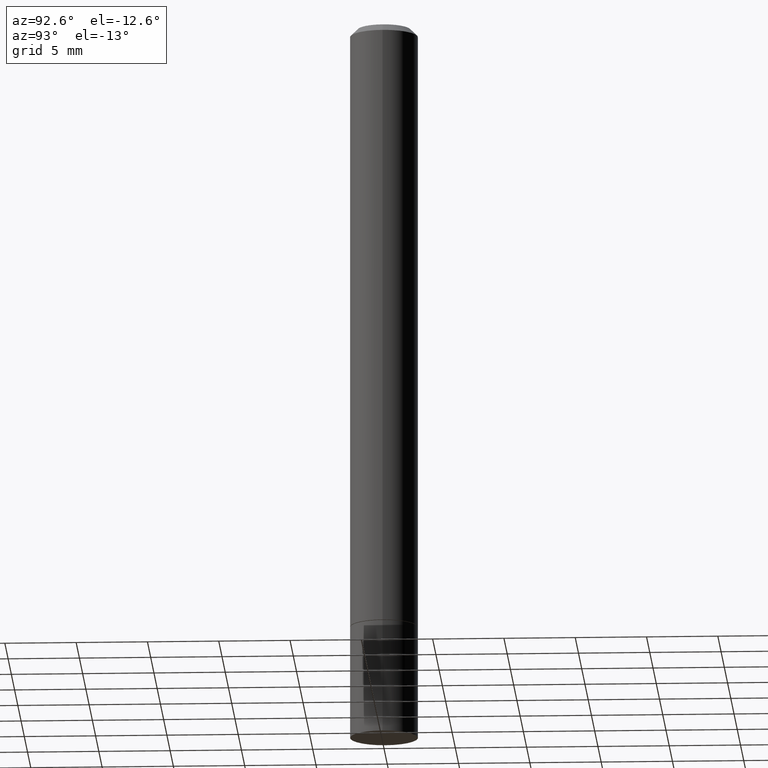
[diagram: clean part render]
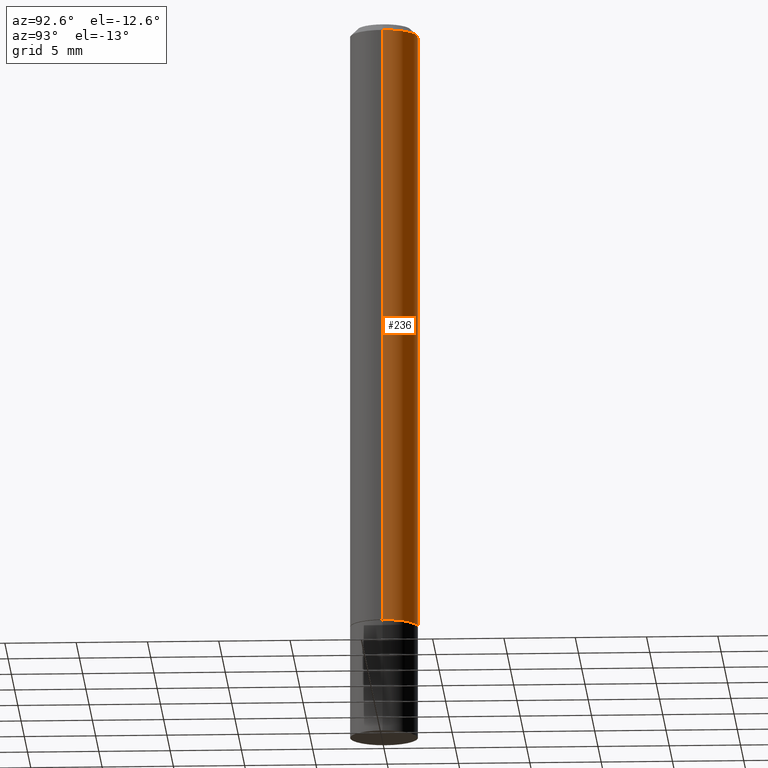
[diagram: same view with one face highlighted and labeled with its STEP entity id]
A machine part, auxiliary view. The second image highlights one B-rep face of the part: STEP entity #236.
In plain terms, the highlighted cylindrical surface (edge-blend (fillet) strip) has radius 2.3812 mm, axis along (-0, 0, 1).
Its self-contained STEP definition (entity closure, byte-faithful):
#2 = CARTESIAN_POINT ( 'NONE',  ( -0.09374999999999988898, 6.661338147750931354E-16, -4.611501647113968390E-30 ) ) ;
#7 = CARTESIAN_POINT ( 'NONE',  ( 0.000000000000000000, 0.000000000000000000, 0.000000000000000000 ) ) ;
#8 = ORIENTED_EDGE ( 'NONE', *, *, #365, .F. ) ;
#21 = AXIS2_PLACEMENT_3D ( 'NONE', #7, #350, #121 ) ;
#40 = EDGE_CURVE ( 'NONE', #307, #108, #92, .T. ) ;
#50 = VERTEX_POINT ( 'NONE', #57 ) ;
#57 = CARTESIAN_POINT ( 'NONE',  ( 0.09375000000000001388, -6.543036028992051756E-15, -1.686499999999999888 ) ) ;
#67 = DIRECTION ( 'NONE',  ( -2.445468806185136597E-29, 3.491481338843145583E-15, 1.000000000000000000 ) ) ;
#69 = EDGE_LOOP ( 'NONE', ( #336, #256, #8, #190 ) ) ;
#70 = CARTESIAN_POINT ( 'NONE',  ( 4.124283141631232404E-29, -5.888383277958965040E-15, -1.686499999999999888 ) ) ;
#84 = EDGE_CURVE ( 'NONE', #50, #126, #285, .T. ) ;
#90 = CIRCLE ( 'NONE', #283, 0.09374999999999979183 ) ;
#92 = LINE ( 'NONE', #2, #111 ) ;
#99 = AXIS2_PLACEMENT_3D ( 'NONE', #70, #123, #267 ) ;
#102 = CYLINDRICAL_SURFACE ( 'NONE', #21, 0.09374999999999988898 ) ;
#108 = VERTEX_POINT ( 'NONE', #143 ) ;
#111 = VECTOR ( 'NONE', #309, 39.37007874015748143 ) ;
#121 = DIRECTION ( 'NONE',  ( 1.000000000000000000, -6.982962677686265133E-15, 4.876176775795935793E-29 ) ) ;
#123 = DIRECTION ( 'NONE',  ( -2.445468806185136597E-29, 3.491481338843145583E-15, 1.000000000000000000 ) ) ;
#126 = VERTEX_POINT ( 'NONE', #168 ) ;
#141 = VECTOR ( 'NONE', #175, 39.37007874015748143 ) ;
#143 = CARTESIAN_POINT ( 'NONE',  ( -0.09374999999999979183, 5.848231242562229240E-16, -0.02000000000000003858 ) ) ;
#163 = CIRCLE ( 'NONE', #99, 0.09375000000000001388 ) ;
#168 = CARTESIAN_POINT ( 'NONE',  ( 0.09374999999999979183, -7.130013140679427058E-16, -0.02000000000000003858 ) ) ;
#175 = DIRECTION ( 'NONE',  ( -2.445468806185136877E-29, 3.491481338843145188E-15, 1.000000000000000000 ) ) ;
#181 = FACE_OUTER_BOUND ( 'NONE', #69, .T. ) ;
#190 = ORIENTED_EDGE ( 'NONE', *, *, #84, .F. ) ;
#231 = CARTESIAN_POINT ( 'NONE',  ( 0.09374999999999988898, -6.546527510330866166E-16, 4.571415727308684201E-30 ) ) ;
#236 = ADVANCED_FACE ( 'NONE', ( #181 ), #102, .T. ) ;
#241 = DIRECTION ( 'NONE',  ( 1.000000000000000000, -6.982962677686266711E-15, 0.000000000000000000 ) ) ;
#256 = ORIENTED_EDGE ( 'NONE', *, *, #40, .T. ) ;
#267 = DIRECTION ( 'NONE',  ( 1.000000000000000000, -6.982962677686261189E-15, 0.000000000000000000 ) ) ;
#268 = EDGE_CURVE ( 'NONE', #50, #307, #163, .T. ) ;
#269 = CARTESIAN_POINT ( 'NONE',  ( -0.09375000000000001388, -2.312972637592815906E-15, -1.686499999999999888 ) ) ;
#283 = AXIS2_PLACEMENT_3D ( 'NONE', #319, #67, #241 ) ;
#285 = LINE ( 'NONE', #231, #141 ) ;
#307 = VERTEX_POINT ( 'NONE', #269 ) ;
#309 = DIRECTION ( 'NONE',  ( -2.445468806185136877E-29, 3.491481338843145188E-15, 1.000000000000000000 ) ) ;
#319 = CARTESIAN_POINT ( 'NONE',  ( 4.890937612370282792E-31, -6.982962677686303935E-17, -0.02000000000000003858 ) ) ;
#336 = ORIENTED_EDGE ( 'NONE', *, *, #268, .T. ) ;
#350 = DIRECTION ( 'NONE',  ( -2.445468806185136597E-29, 3.491481338843145583E-15, 1.000000000000000000 ) ) ;
#365 = EDGE_CURVE ( 'NONE', #126, #108, #90, .T. ) ;